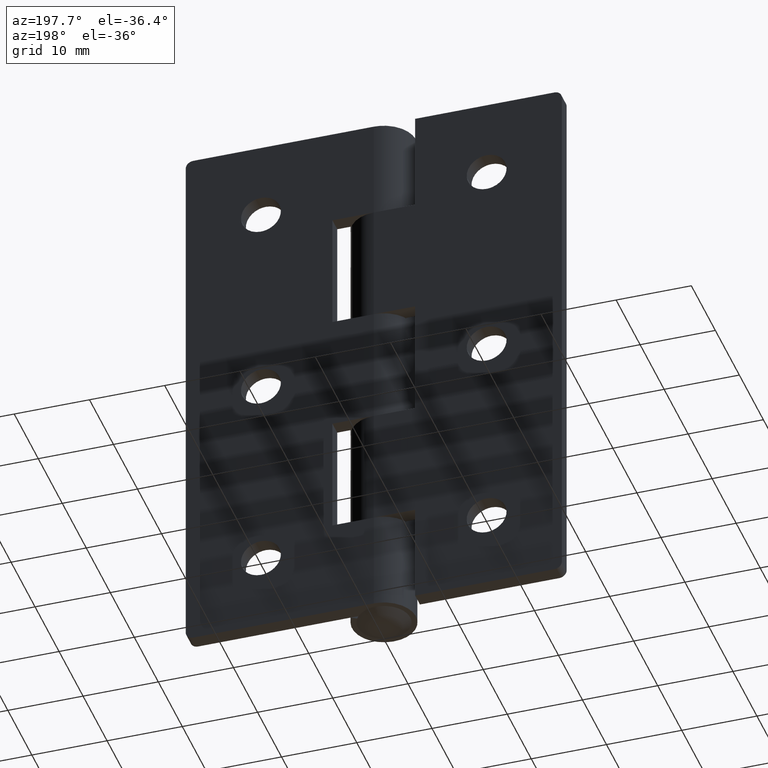
[diagram: clean part render]
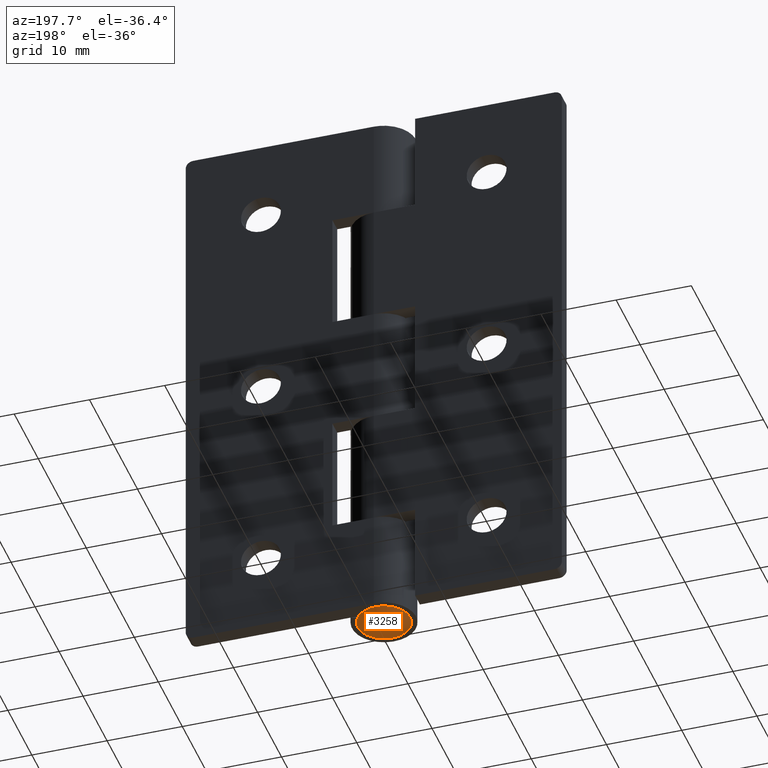
[diagram: same view with one face highlighted and labeled with its STEP entity id]
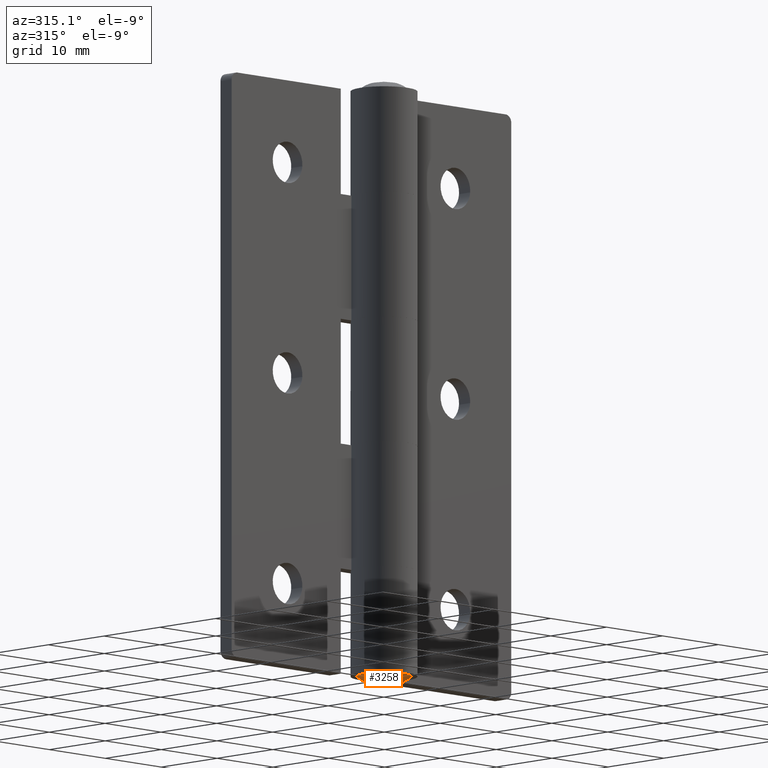
[diagram: same view with one face highlighted and labeled with its STEP entity id]
A machine part, auxiliary view. The second image highlights one B-rep face of the part: STEP entity #3258.
A second angle (auxiliary view) of the same face is appended — the face is thin or edge-on in the first view.
In plain terms, the highlighted face is a freeform B-spline surface patch.
Its self-contained STEP definition (entity closure, byte-faithful):
#3198=CARTESIAN_POINT('',(-3.316994689388606,3.316994689388607,1.355973199654456));
#3199=CARTESIAN_POINT('',(-1.880206264879783,3.760412529759567,0.227170630322070));
#3200=CARTESIAN_POINT('',(1.880206203703225,3.760412529759567,0.227170630322070));
#3201=CARTESIAN_POINT('',(3.316994606915633,3.316994714841195,1.355973134860155));
#3202=CARTESIAN_POINT('',(-3.760412529759564,1.880206264879784,0.227170630322068));
#3203=CARTESIAN_POINT('',(-2.170338405146001,2.170338405146002,-1.249999999999998));
#3204=CARTESIAN_POINT('',(2.170338334529369,2.170338405146002,-1.249999999999998));
#3205=CARTESIAN_POINT('',(3.760412440118926,1.880206281236022,0.227170547046380));
#3206=CARTESIAN_POINT('',(-3.760412529759564,-1.880206203703225,0.227170630322068));
#3207=CARTESIAN_POINT('',(-2.170338405146001,-2.170338334529369,-1.249999999999998));
#3208=CARTESIAN_POINT('',(2.170338334529369,-2.170338334529369,-1.249999999999998));
#3209=CARTESIAN_POINT('',(3.760412440118926,-1.880206220059462,0.227170547046380));
#3210=CARTESIAN_POINT('',(-3.316994714841194,-3.316994606915631,1.355973134860151));
#3211=CARTESIAN_POINT('',(-1.880206281236021,-3.760412440118924,0.227170547046379));
#3212=CARTESIAN_POINT('',(1.880206220059462,-3.760412440118924,0.227170547046379));
#3213=CARTESIAN_POINT('',(3.316994632368223,-3.316994632368222,1.355973070065851));
#3221=(BOUNDED_SURFACE()B_SPLINE_SURFACE(2,2,((#3198,#3202,#3206,#3210),(#3199,#3203,#3207,#3211),(#3200,#3204,#3208,#3212),(#3201,#3205,#3209,#3213)),.UNSPECIFIED.,.F.,.F.,.U.)B_SPLINE_SURFACE_WITH_KNOTS((3,1,3),(3,1,3),(0.0,4.029763123446172,8.059526115775329),(0.0,4.029763123446170,8.059526115775325),.UNSPECIFIED.)GEOMETRIC_REPRESENTATION_ITEM()RATIONAL_B_SPLINE_SURFACE(((1.308617352984693,1.154308676492347,1.154308676492347,1.308617342943164),(1.154308676492347,1.0,1.0,1.154308666450817),(1.154308676492347,1.0,1.0,1.154308666450817),(1.308617342943164,1.154308666450817,1.154308666450817,1.308617332901634)))REPRESENTATION_ITEM('')SURFACE());
#3222=CARTESIAN_POINT('',(-3.500000000000000,0.0,0.0));
#3223=VERTEX_POINT('',#3222);
#3224=CARTESIAN_POINT('',(3.500000000000000,0.0,0.0));
#3225=VERTEX_POINT('',#3224);
#3226=CARTESIAN_POINT('',(-3.500000000000000,0.0,0.0));
#3227=CARTESIAN_POINT('',(-3.500000000000000,3.500000000000000,0.0));
#3228=CARTESIAN_POINT('',(0.0,3.500000000000000,0.0));
#3229=CARTESIAN_POINT('',(3.500000000000000,3.500000000000000,0.0));
#3230=CARTESIAN_POINT('',(3.500000000000000,0.0,0.0));
#3238=(BOUNDED_CURVE()B_SPLINE_CURVE(2,(#3226,#3227,#3228,#3229,#3230),.UNSPECIFIED.,.F.,.U.)B_SPLINE_CURVE_WITH_KNOTS((3,2,3),(0.0,0.250000000000000,0.500000000000000),.UNSPECIFIED.)CURVE()GEOMETRIC_REPRESENTATION_ITEM()RATIONAL_B_SPLINE_CURVE((1.0,0.707106781186547,1.0,0.707106781186547,1.0))REPRESENTATION_ITEM(''));
#3239=EDGE_CURVE('',#3223,#3225,#3238,.T.);
#3240=ORIENTED_EDGE('',*,*,#3239,.T.);
#3241=CARTESIAN_POINT('',(3.500000000000000,0.0,0.0));
#3242=CARTESIAN_POINT('',(3.500000000000000,-3.500000000000000,0.0));
#3243=CARTESIAN_POINT('',(0.0,-3.500000000000000,0.0));
#3244=CARTESIAN_POINT('',(-3.500000000000000,-3.500000000000000,0.0));
#3245=CARTESIAN_POINT('',(-3.500000000000000,0.0,0.0));
#3253=(BOUNDED_CURVE()B_SPLINE_CURVE(2,(#3241,#3242,#3243,#3244,#3245),.UNSPECIFIED.,.F.,.U.)B_SPLINE_CURVE_WITH_KNOTS((3,2,3),(0.500000000000000,0.750000000000000,1.0),.UNSPECIFIED.)CURVE()GEOMETRIC_REPRESENTATION_ITEM()RATIONAL_B_SPLINE_CURVE((1.0,0.707106781186547,1.0,0.707106781186547,1.0))REPRESENTATION_ITEM(''));
#3254=EDGE_CURVE('',#3225,#3223,#3253,.T.);
#3255=ORIENTED_EDGE('',*,*,#3254,.T.);
#3256=EDGE_LOOP('',(#3240,#3255));
#3257=FACE_OUTER_BOUND('',#3256,.T.);
#3258=ADVANCED_FACE('',(#3257),#3221,.T.);